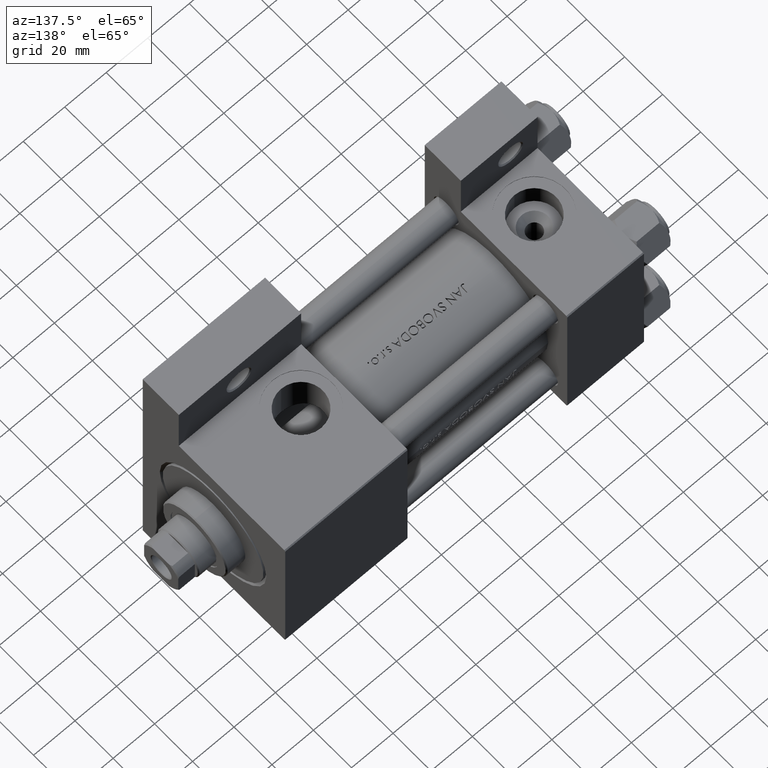
[diagram: clean part render]
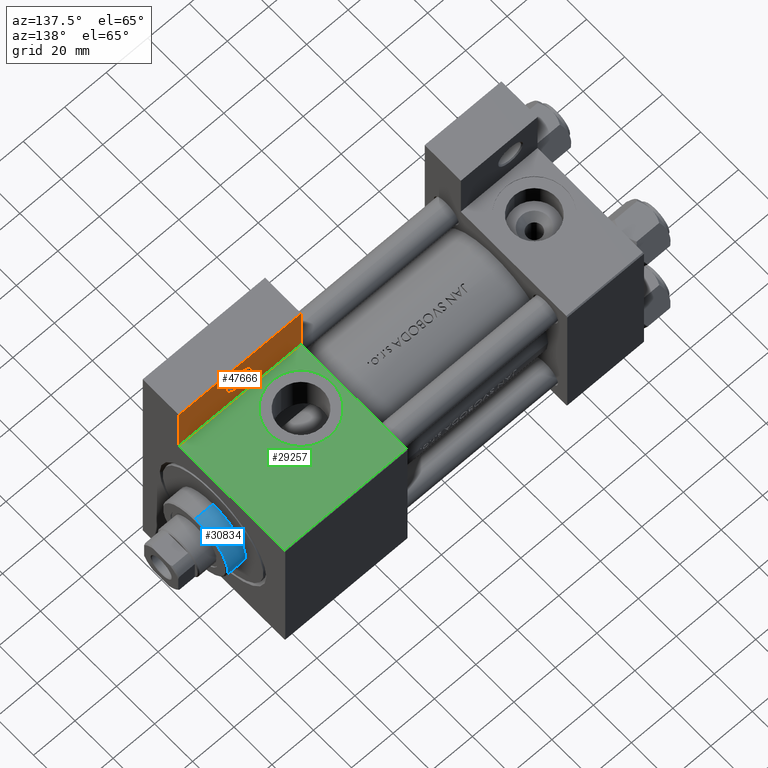
[diagram: same view with three faces highlighted in distinct colors, each labeled with its STEP entity id]
A machine part, auxiliary view with three faces highlighted in distinct colors.
Their STEP definitions:

[orange] entity #47666 — the highlighted planar face has unit normal (0, -1, 0).
#405 = CARTESIAN_POINT ( 'NONE',  ( 113.9999999999999716, -63.50000000000000000, -18.50000000000000000 ) ) ;
#459 = CIRCLE ( 'NONE', #15594, 5.999500000000018929 ) ;
#567 = DIRECTION ( 'NONE',  ( 0.000000000000000000, 0.000000000000000000, -1.000000000000000000 ) ) ;
#936 = CARTESIAN_POINT ( 'NONE',  ( 149.9995000000000402, -51.00000000000000000, -18.50000000000000000 ) ) ;
#1006 = VECTOR ( 'NONE', #29494, 1000.000000000000000 ) ;
#2621 = VERTEX_POINT ( 'NONE', #13610 ) ;
#3230 = ORIENTED_EDGE ( 'NONE', *, *, #28274, .F. ) ;
#3286 = CARTESIAN_POINT ( 'NONE',  ( 173.0000000000000000, -63.50000000000002842, -18.50000000000000000 ) ) ;
#3745 = CARTESIAN_POINT ( 'NONE',  ( 113.9999999999999716, -63.50000000000000000, -18.50000000000000000 ) ) ;
#5121 = CARTESIAN_POINT ( 'NONE',  ( 113.9999999999999858, -37.50000000000000000, -18.50000000000000000 ) ) ;
#5139 = EDGE_CURVE ( 'NONE', #12412, #23650, #459, .T. ) ;
#6624 = EDGE_LOOP ( 'NONE', ( #26426, #36593 ) ) ;
#8396 = LINE ( 'NONE', #405, #20051 ) ;
#9120 = EDGE_LOOP ( 'NONE', ( #14474, #28638, #3230, #13891 ) ) ;
#12030 = DIRECTION ( 'NONE',  ( -1.000000000000000000, 0.000000000000000000, -0.000000000000000000 ) ) ;
#12063 = CARTESIAN_POINT ( 'NONE',  ( 138.0004999999999882, -51.00000000000000000, -18.50000000000000000 ) ) ;
#12412 = VERTEX_POINT ( 'NONE', #936 ) ;
#13057 = CARTESIAN_POINT ( 'NONE',  ( 144.0000000000000284, -51.00000000000000000, -18.50000000000000000 ) ) ;
#13387 = LINE ( 'NONE', #29329, #31314 ) ;
#13610 = CARTESIAN_POINT ( 'NONE',  ( 113.9999999999999716, -63.50000000000000000, -18.50000000000000000 ) ) ;
#13891 = ORIENTED_EDGE ( 'NONE', *, *, #16027, .F. ) ;
#14474 = ORIENTED_EDGE ( 'NONE', *, *, #45680, .F. ) ;
#15594 = AXIS2_PLACEMENT_3D ( 'NONE', #13057, #27282, #24281 ) ;
#15621 = DIRECTION ( 'NONE',  ( 5.337610695313252371E-16, 1.000000000000000000, 0.000000000000000000 ) ) ;
#16027 = EDGE_CURVE ( 'NONE', #49248, #2621, #38624, .T. ) ;
#16513 = CARTESIAN_POINT ( 'NONE',  ( 0.000000000000000000, 0.000000000000000000, -18.50000000000000000 ) ) ;
#19509 = FACE_BOUND ( 'NONE', #6624, .T. ) ;
#19759 = FACE_OUTER_BOUND ( 'NONE', #9120, .T. ) ;
#20051 = VECTOR ( 'NONE', #15621, 1000.000000000000000 ) ;
#20262 = PLANE ( 'NONE',  #44820 ) ;
#22217 = CARTESIAN_POINT ( 'NONE',  ( 173.0000000000000000, -63.50000000000002842, -18.50000000000000000 ) ) ;
#22580 = CARTESIAN_POINT ( 'NONE',  ( 144.0000000000000284, -51.00000000000000000, -18.50000000000000000 ) ) ;
#23650 = VERTEX_POINT ( 'NONE', #12063 ) ;
#24153 = AXIS2_PLACEMENT_3D ( 'NONE', #22580, #26567, #30068 ) ;
#24281 = DIRECTION ( 'NONE',  ( -1.000000000000000000, 0.000000000000000000, 0.000000000000000000 ) ) ;
#26426 = ORIENTED_EDGE ( 'NONE', *, *, #5139, .T. ) ;
#26567 = DIRECTION ( 'NONE',  ( 0.000000000000000000, 0.000000000000000000, -1.000000000000000000 ) ) ;
#26958 = VECTOR ( 'NONE', #41858, 1000.000000000000000 ) ;
#27282 = DIRECTION ( 'NONE',  ( 0.000000000000000000, 0.000000000000000000, -1.000000000000000000 ) ) ;
#28274 = EDGE_CURVE ( 'NONE', #2621, #36598, #8396, .T. ) ;
#28638 = ORIENTED_EDGE ( 'NONE', *, *, #31234, .F. ) ;
#28954 = CIRCLE ( 'NONE', #24153, 5.999500000000018929 ) ;
#29329 = CARTESIAN_POINT ( 'NONE',  ( 113.9999999999999858, -37.50000000000000000, -18.50000000000000000 ) ) ;
#29494 = DIRECTION ( 'NONE',  ( -0.000000000000000000, -1.000000000000000000, -0.000000000000000000 ) ) ;
#30068 = DIRECTION ( 'NONE',  ( -1.000000000000000000, 0.000000000000000000, 0.000000000000000000 ) ) ;
#31234 = EDGE_CURVE ( 'NONE', #36598, #46307, #13387, .T. ) ;
#31314 = VECTOR ( 'NONE', #40996, 1000.000000000000000 ) ;
#32302 = EDGE_CURVE ( 'NONE', #23650, #12412, #28954, .T. ) ;
#36593 = ORIENTED_EDGE ( 'NONE', *, *, #32302, .T. ) ;
#36598 = VERTEX_POINT ( 'NONE', #5121 ) ;
#37436 = LINE ( 'NONE', #3286, #1006 ) ;
#38624 = LINE ( 'NONE', #3745, #26958 ) ;
#38737 = CARTESIAN_POINT ( 'NONE',  ( 173.0000000000000000, -37.50000000000000711, -18.50000000000000355 ) ) ;
#40996 = DIRECTION ( 'NONE',  ( 1.000000000000000000, -3.528251137579946599E-16, 0.000000000000000000 ) ) ;
#41858 = DIRECTION ( 'NONE',  ( -1.000000000000000000, 4.704334850106594808E-16, -0.000000000000000000 ) ) ;
#44820 = AXIS2_PLACEMENT_3D ( 'NONE', #16513, #567, #12030 ) ;
#45680 = EDGE_CURVE ( 'NONE', #46307, #49248, #37436, .T. ) ;
#46307 = VERTEX_POINT ( 'NONE', #38737 ) ;
#47666 = ADVANCED_FACE ( 'NONE', ( #19509, #19759 ), #20262, .F. ) ;
#49248 = VERTEX_POINT ( 'NONE', #22217 ) ;

[blue] entity #30834 — the highlighted cylindrical surface (partial cylindrical patch) has radius 17 mm, axis along (-1, -0, 0).
#295 = DIRECTION ( 'NONE',  ( -0.000000000000000000, -0.000000000000000000, -1.000000000000000000 ) ) ;
#341 = CYLINDRICAL_SURFACE ( 'NONE', #3413, 17.00000000000000000 ) ;
#1168 = CARTESIAN_POINT ( 'NONE',  ( -17.00000000000000000, 0.000000000000000000, 28.69999999999999929 ) ) ;
#2665 = ORIENTED_EDGE ( 'NONE', *, *, #19739, .T. ) ;
#3112 = AXIS2_PLACEMENT_3D ( 'NONE', #49031, #14937, #45303 ) ;
#3340 = DIRECTION ( 'NONE',  ( -1.000000000000000000, 0.000000000000000000, 0.000000000000000000 ) ) ;
#3413 = AXIS2_PLACEMENT_3D ( 'NONE', #10844, #22307, #3340 ) ;
#5221 = CARTESIAN_POINT ( 'NONE',  ( 17.00000000000000000, 2.081899558550500280E-15, 37.19999999999999574 ) ) ;
#7150 = VECTOR ( 'NONE', #45149, 1000.000000000000000 ) ;
#9441 = CARTESIAN_POINT ( 'NONE',  ( 0.000000000000000000, 0.000000000000000000, 28.69999999999999929 ) ) ;
#9750 = VERTEX_POINT ( 'NONE', #5221 ) ;
#10844 = CARTESIAN_POINT ( 'NONE',  ( 0.000000000000000000, 0.000000000000000000, 37.69999999999999574 ) ) ;
#11771 = LINE ( 'NONE', #22757, #34241 ) ;
#14937 = DIRECTION ( 'NONE',  ( 0.000000000000000000, 0.000000000000000000, -1.000000000000000000 ) ) ;
#16157 = VERTEX_POINT ( 'NONE', #28417 ) ;
#17279 = EDGE_CURVE ( 'NONE', #22301, #9750, #44489, .T. ) ;
#19523 = EDGE_CURVE ( 'NONE', #22301, #20755, #36700, .T. ) ;
#19739 = EDGE_CURVE ( 'NONE', #16157, #20755, #45320, .T. ) ;
#20755 = VERTEX_POINT ( 'NONE', #1168 ) ;
#21482 = EDGE_CURVE ( 'NONE', #9750, #16157, #11771, .T. ) ;
#22301 = VERTEX_POINT ( 'NONE', #23001 ) ;
#22307 = DIRECTION ( 'NONE',  ( -0.000000000000000000, -0.000000000000000000, -1.000000000000000000 ) ) ;
#22757 = CARTESIAN_POINT ( 'NONE',  ( 17.00000000000000000, 2.081899558550500280E-15, 37.69999999999999574 ) ) ;
#23001 = CARTESIAN_POINT ( 'NONE',  ( -17.00000000000000000, 0.000000000000000000, 37.19999999999999574 ) ) ;
#27098 = ORIENTED_EDGE ( 'NONE', *, *, #19523, .F. ) ;
#28417 = CARTESIAN_POINT ( 'NONE',  ( 17.00000000000000000, 2.081899558550500280E-15, 28.69999999999999929 ) ) ;
#30834 = ADVANCED_FACE ( 'NONE', ( #34486 ), #341, .T. ) ;
#33710 = CARTESIAN_POINT ( 'NONE',  ( -17.00000000000000000, 0.000000000000000000, 37.69999999999999574 ) ) ;
#34241 = VECTOR ( 'NONE', #295, 1000.000000000000000 ) ;
#34486 = FACE_OUTER_BOUND ( 'NONE', #45831, .T. ) ;
#36700 = LINE ( 'NONE', #33710, #7150 ) ;
#38297 = ORIENTED_EDGE ( 'NONE', *, *, #21482, .T. ) ;
#42948 = ORIENTED_EDGE ( 'NONE', *, *, #17279, .T. ) ;
#43771 = AXIS2_PLACEMENT_3D ( 'NONE', #9441, #44055, #48266 ) ;
#44055 = DIRECTION ( 'NONE',  ( 0.000000000000000000, 0.000000000000000000, 1.000000000000000000 ) ) ;
#44489 = CIRCLE ( 'NONE', #3112, 17.00000000000000000 ) ;
#45149 = DIRECTION ( 'NONE',  ( -0.000000000000000000, -0.000000000000000000, -1.000000000000000000 ) ) ;
#45303 = DIRECTION ( 'NONE',  ( 1.000000000000000000, 0.000000000000000000, 0.000000000000000000 ) ) ;
#45320 = CIRCLE ( 'NONE', #43771, 17.00000000000000000 ) ;
#45831 = EDGE_LOOP ( 'NONE', ( #42948, #38297, #2665, #27098 ) ) ;
#48266 = DIRECTION ( 'NONE',  ( 1.000000000000000000, 0.000000000000000000, 0.000000000000000000 ) ) ;
#49031 = CARTESIAN_POINT ( 'NONE',  ( 0.000000000000000000, 0.000000000000000000, 37.19999999999999574 ) ) ;

[green] entity #29257 — the highlighted planar face has unit normal (0, -0, -1).
#1038 = VECTOR ( 'NONE', #46381, 1000.000000000000000 ) ;
#1090 = VERTEX_POINT ( 'NONE', #24752 ) ;
#2920 = EDGE_CURVE ( 'NONE', #31467, #46307, #10732, .T. ) ;
#3837 = VERTEX_POINT ( 'NONE', #28508 ) ;
#5121 = CARTESIAN_POINT ( 'NONE',  ( 113.9999999999999858, -37.50000000000000000, -18.50000000000000000 ) ) ;
#6474 = CARTESIAN_POINT ( 'NONE',  ( 131.0000000000000000, -37.50000000000000000, 3.469446951953615767E-15 ) ) ;
#9388 = DIRECTION ( 'NONE',  ( 0.000000000000000000, -1.000000000000000000, -8.673617379884036705E-17 ) ) ;
#10480 = ORIENTED_EDGE ( 'NONE', *, *, #2920, .F. ) ;
#10732 = LINE ( 'NONE', #40619, #26661 ) ;
#11311 = CARTESIAN_POINT ( 'NONE',  ( 173.0000000000000000, -37.50000000000000000, 37.49999999999997868 ) ) ;
#12276 = EDGE_LOOP ( 'NONE', ( #10480, #35271, #17243, #19451 ) ) ;
#12588 = DIRECTION ( 'NONE',  ( 0.000000000000000000, -9.251858538542972814E-17, -1.000000000000000000 ) ) ;
#13012 = CARTESIAN_POINT ( 'NONE',  ( 173.0000000000000000, -37.50000000000000000, 36.99999999999995026 ) ) ;
#13387 = LINE ( 'NONE', #29329, #31314 ) ;
#14087 = PLANE ( 'NONE',  #38345 ) ;
#14226 = DIRECTION ( 'NONE',  ( 0.000000000000000000, -9.251858538542972814E-17, -1.000000000000000000 ) ) ;
#14232 = ORIENTED_EDGE ( 'NONE', *, *, #28586, .F. ) ;
#17243 = ORIENTED_EDGE ( 'NONE', *, *, #21987, .T. ) ;
#17664 = VERTEX_POINT ( 'NONE', #19840 ) ;
#17840 = CARTESIAN_POINT ( 'NONE',  ( 131.0000000000000000, -37.50000000000000000, 3.469446951953615767E-15 ) ) ;
#19451 = ORIENTED_EDGE ( 'NONE', *, *, #31234, .T. ) ;
#19840 = CARTESIAN_POINT ( 'NONE',  ( 113.9999999999999858, -37.50000000000000000, 36.99999999999995026 ) ) ;
#20863 = EDGE_CURVE ( 'NONE', #3837, #1090, #41341, .T. ) ;
#20886 = CIRCLE ( 'NONE', #24865, 15.00000000000002487 ) ;
#21956 = EDGE_LOOP ( 'NONE', ( #29104, #14232 ) ) ;
#21987 = EDGE_CURVE ( 'NONE', #17664, #36598, #42215, .T. ) ;
#24055 = CARTESIAN_POINT ( 'NONE',  ( 113.9999999999999858, -37.50000000000000000, 37.49999999999997868 ) ) ;
#24293 = CARTESIAN_POINT ( 'NONE',  ( 173.0000000000000000, -37.50000000000000000, 36.99999999999995026 ) ) ;
#24752 = CARTESIAN_POINT ( 'NONE',  ( 131.0000000000000000, -37.50000000000000000, 15.00000000000002842 ) ) ;
#24865 = AXIS2_PLACEMENT_3D ( 'NONE', #6474, #40350, #47812 ) ;
#26249 = AXIS2_PLACEMENT_3D ( 'NONE', #17840, #9388, #33060 ) ;
#26276 = FACE_BOUND ( 'NONE', #21956, .T. ) ;
#26661 = VECTOR ( 'NONE', #14226, 1000.000000000000000 ) ;
#28508 = CARTESIAN_POINT ( 'NONE',  ( 131.0000000000000000, -37.50000000000000000, -15.00000000000002132 ) ) ;
#28586 = EDGE_CURVE ( 'NONE', #1090, #3837, #20886, .T. ) ;
#29104 = ORIENTED_EDGE ( 'NONE', *, *, #20863, .F. ) ;
#29257 = ADVANCED_FACE ( 'NONE', ( #26276, #29291 ), #14087, .F. ) ;
#29291 = FACE_OUTER_BOUND ( 'NONE', #12276, .T. ) ;
#29329 = CARTESIAN_POINT ( 'NONE',  ( 113.9999999999999858, -37.50000000000000000, -18.50000000000000000 ) ) ;
#31234 = EDGE_CURVE ( 'NONE', #36598, #46307, #13387, .T. ) ;
#31314 = VECTOR ( 'NONE', #40996, 1000.000000000000000 ) ;
#31467 = VERTEX_POINT ( 'NONE', #24293 ) ;
#33060 = DIRECTION ( 'NONE',  ( 0.000000000000000000, 0.000000000000000000, -1.000000000000000000 ) ) ;
#33506 = DIRECTION ( 'NONE',  ( 0.000000000000000000, 1.000000000000000000, -9.251858538542972814E-17 ) ) ;
#35271 = ORIENTED_EDGE ( 'NONE', *, *, #35597, .T. ) ;
#35597 = EDGE_CURVE ( 'NONE', #31467, #17664, #46635, .T. ) ;
#36598 = VERTEX_POINT ( 'NONE', #5121 ) ;
#38345 = AXIS2_PLACEMENT_3D ( 'NONE', #11311, #33506, #44465 ) ;
#38737 = CARTESIAN_POINT ( 'NONE',  ( 173.0000000000000000, -37.50000000000000711, -18.50000000000000355 ) ) ;
#40350 = DIRECTION ( 'NONE',  ( 0.000000000000000000, -1.000000000000000000, -8.673617379884036705E-17 ) ) ;
#40619 = CARTESIAN_POINT ( 'NONE',  ( 173.0000000000000000, -37.50000000000000000, 37.49999999999997868 ) ) ;
#40996 = DIRECTION ( 'NONE',  ( 1.000000000000000000, -3.528251137579946599E-16, 0.000000000000000000 ) ) ;
#41341 = CIRCLE ( 'NONE', #26249, 15.00000000000002487 ) ;
#42215 = LINE ( 'NONE', #24055, #48478 ) ;
#44465 = DIRECTION ( 'NONE',  ( 0.000000000000000000, 9.251858538542972814E-17, 1.000000000000000000 ) ) ;
#46307 = VERTEX_POINT ( 'NONE', #38737 ) ;
#46381 = DIRECTION ( 'NONE',  ( -1.000000000000000000, 0.000000000000000000, 0.000000000000000000 ) ) ;
#46635 = LINE ( 'NONE', #13012, #1038 ) ;
#47812 = DIRECTION ( 'NONE',  ( 0.000000000000000000, 0.000000000000000000, -1.000000000000000000 ) ) ;
#48478 = VECTOR ( 'NONE', #12588, 1000.000000000000000 ) ;